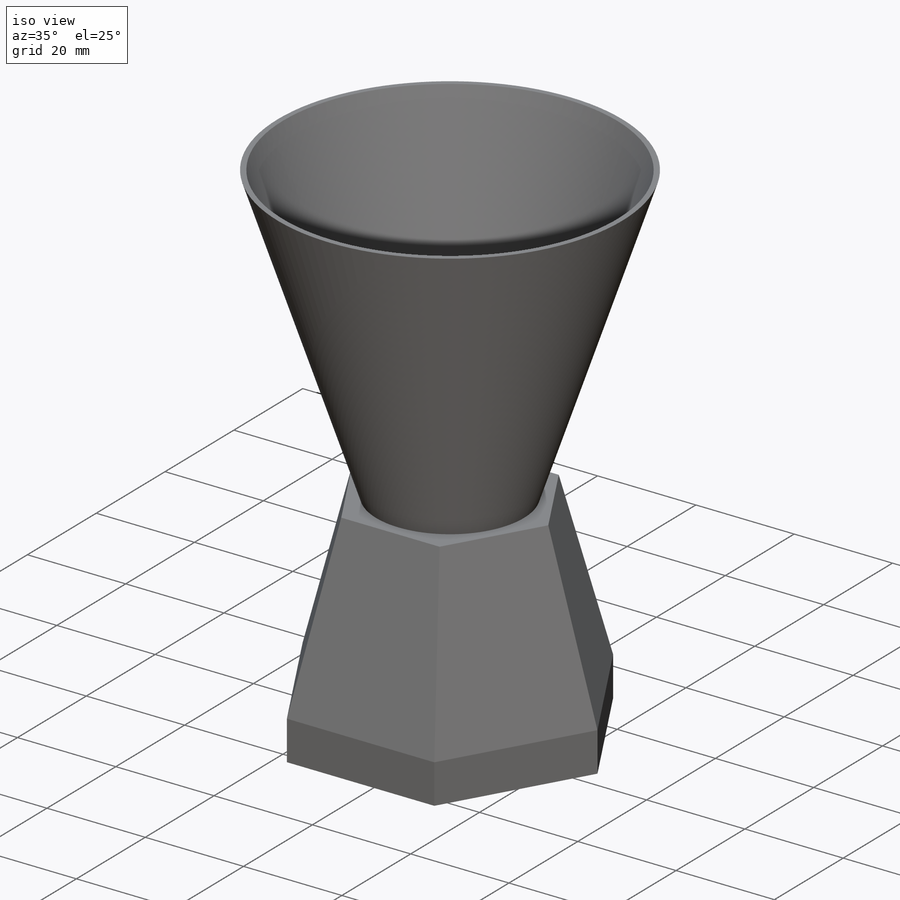
[diagram: iso view]
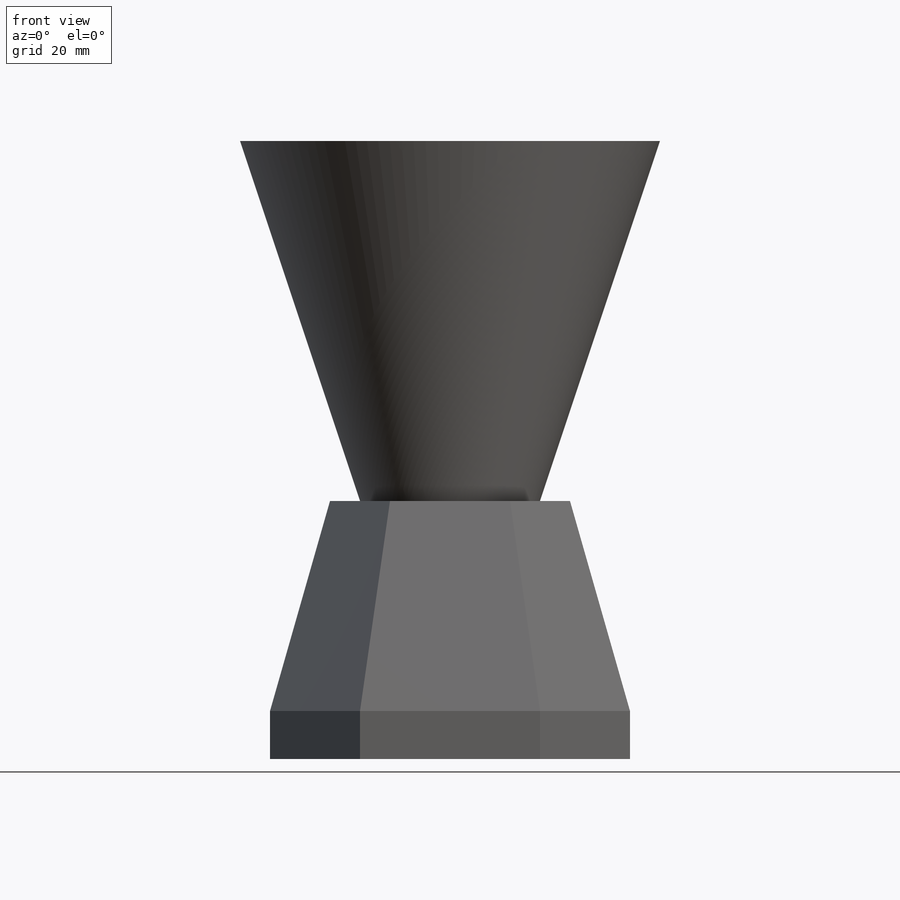
[diagram: front view]
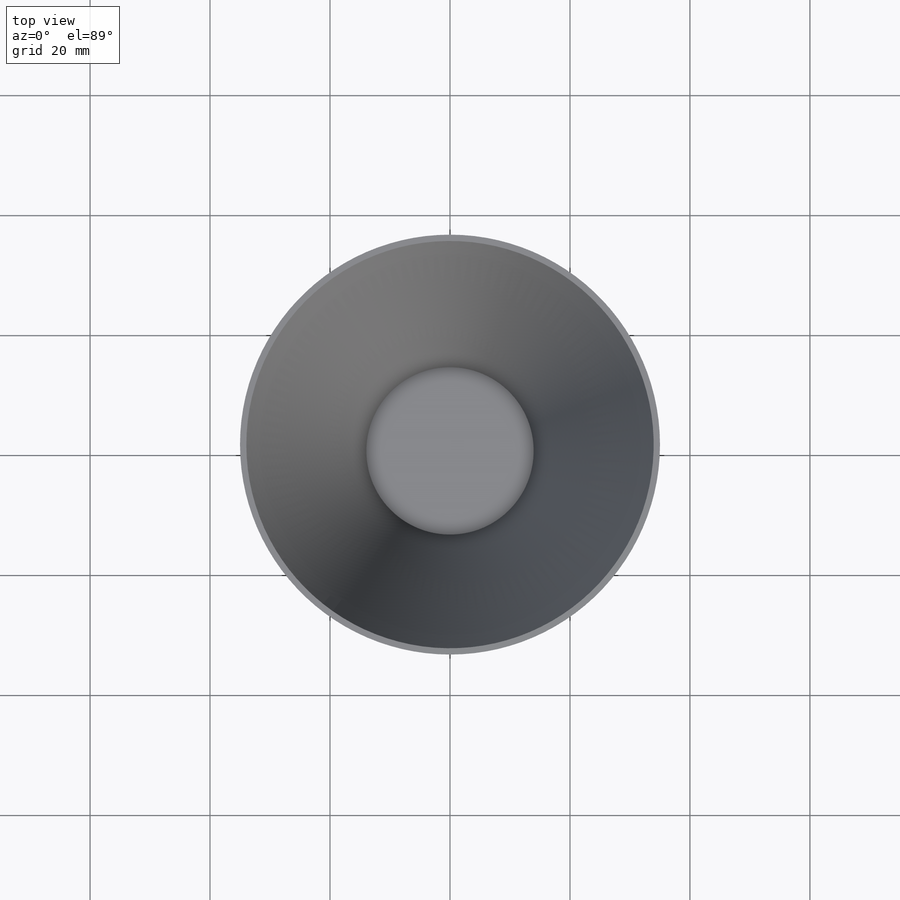
[diagram: top view]
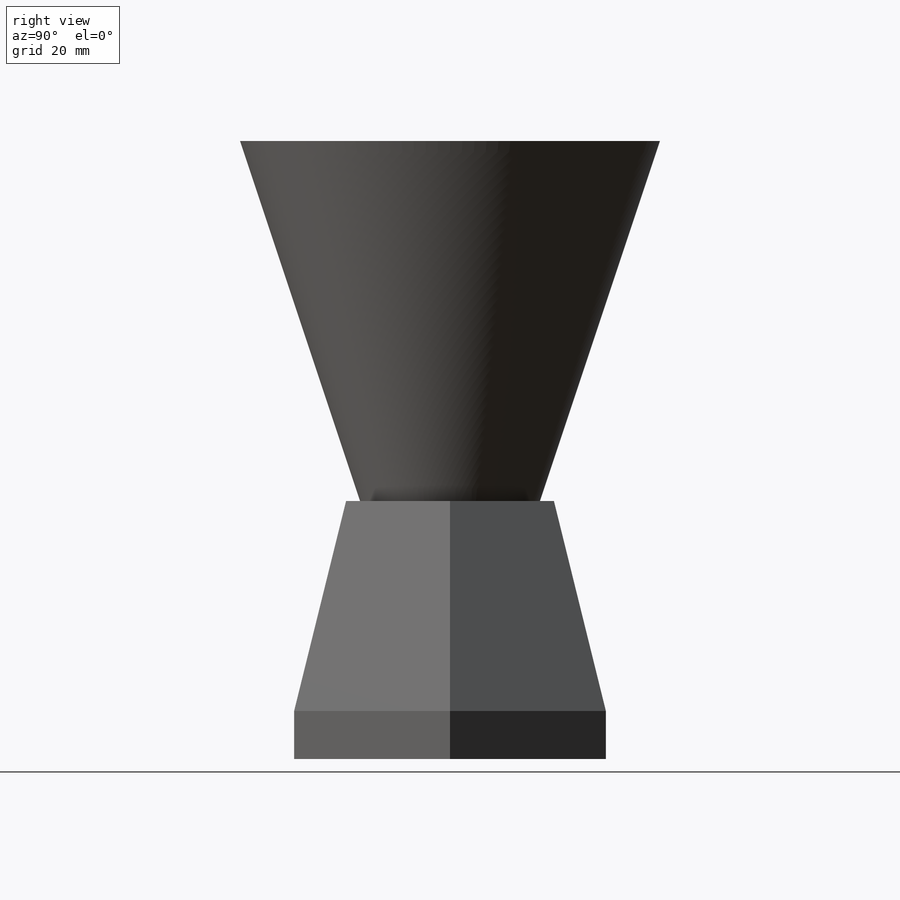
[diagram: right view]
SOLIDWORKS PART (.sldprt)
format: sldprt  version: not decoded by parser v0  size: 313,344 bytes
history: native  units: mm
features: sketch x4, material x1, extrude x1, plane x1, revolve x1 (+16 scaffold rows collapsed)
feature tree (24):
  scaffold x16  (default folders/planes/origin — collapsed)
  material  "Material <not specified>"
  sketch  "Sketch1"  dims[D3=~51.961524mm D1=30.0mm D2=30.0mm]
  extrude  "Extrude1"  Depth=8mm
  sketch  "Sketch2"
  plane  "Plane1"  Offset=43mm
  sketch  "Sketch3"  dims[D1=20.0mm]
  sketch  "Sketch4"  dims[D1=60.0mm D2=35.0mm D3=15.0mm D4=1.0mm]
  revolve  "Revolve1"  Angle=360deg
decode coverage: 5 of 6 modeling features carry decoded parameters
note: ~ marks probable driven/reference dimensions
note: suppression state not decoded; provenance and decode notes live in map.json
